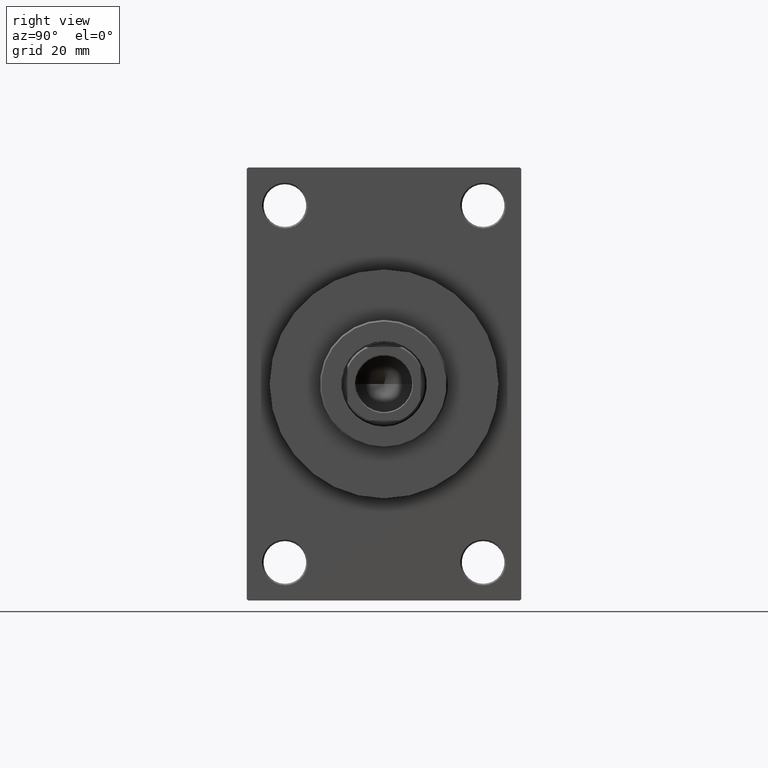
[diagram: clean part render]
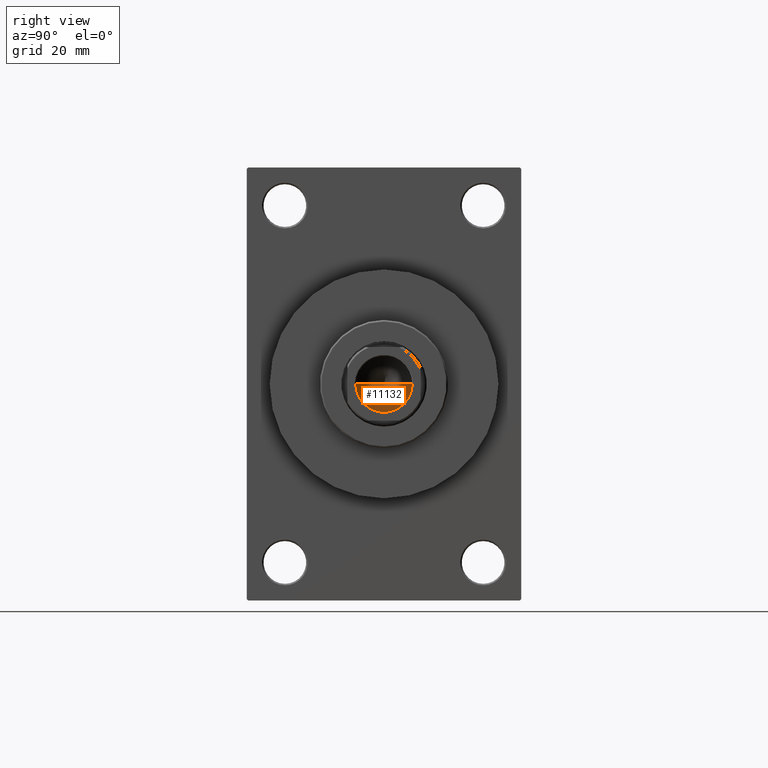
[diagram: same view with one face highlighted and labeled with its STEP entity id]
A machine part, right view. The second image highlights one B-rep face of the part: STEP entity #11132.
In plain terms, the highlighted conical surface has half-angle 59 deg.
Its self-contained STEP definition (entity closure, byte-faithful):
#5213 = CARTESIAN_POINT ( 'NONE',  ( 0.000000000000000000, 0.000000000000000000, 77.99999999999998579 ) ) ;
#8597 = DIRECTION ( 'NONE',  ( -0.8571673007021117785, 1.049727191138617956E-16, 0.5150380749100550437 ) ) ;
#8702 = DIRECTION ( 'NONE',  ( 1.000000000000000000, 0.000000000000000000, 0.000000000000000000 ) ) ;
#9395 = CONICAL_SURFACE ( 'NONE', #17020, 9.249999999999992895, 1.029744258676653423 ) ;
#9996 = DIRECTION ( 'NONE',  ( 0.8571673007021117785, 0.000000000000000000, 0.5150380749100550437 ) ) ;
#11132 = ADVANCED_FACE ( 'NONE', ( #38531 ), #9395, .F. ) ;
#11952 = ORIENTED_EDGE ( 'NONE', *, *, #12473, .F. ) ;
#12137 = CARTESIAN_POINT ( 'NONE',  ( 9.249999999999992895, 0.000000000000000000, 77.99999999999998579 ) ) ;
#12473 = EDGE_CURVE ( 'NONE', #35534, #35426, #34618, .T. ) ;
#15160 = EDGE_LOOP ( 'NONE', ( #11952, #41784, #34279 ) ) ;
#15311 = CIRCLE ( 'NONE', #35155, 9.249999999999992895 ) ;
#15515 = CARTESIAN_POINT ( 'NONE',  ( -9.249999999999992895, 1.132798289211300712E-15, 77.99999999999998579 ) ) ;
#17020 = AXIS2_PLACEMENT_3D ( 'NONE', #27319, #34261, #8702 ) ;
#17377 = CARTESIAN_POINT ( 'NONE',  ( 9.249999999999992895, 0.000000000000000000, 77.99999999999998579 ) ) ;
#19442 = CARTESIAN_POINT ( 'NONE',  ( -9.249999999999992895, 1.132798289211300712E-15, 77.99999999999998579 ) ) ;
#21073 = CARTESIAN_POINT ( 'NONE',  ( -9.769621978240258809E-15, 0.000000000000000000, 72.44203927399505005 ) ) ;
#22885 = DIRECTION ( 'NONE',  ( 1.000000000000000000, 0.000000000000000000, 0.000000000000000000 ) ) ;
#23041 = EDGE_CURVE ( 'NONE', #35534, #32619, #43638, .T. ) ;
#27319 = CARTESIAN_POINT ( 'NONE',  ( 0.000000000000000000, 0.000000000000000000, 77.99999999999998579 ) ) ;
#32619 = VERTEX_POINT ( 'NONE', #12137 ) ;
#33620 = DIRECTION ( 'NONE',  ( -0.000000000000000000, -0.000000000000000000, 1.000000000000000000 ) ) ;
#34261 = DIRECTION ( 'NONE',  ( -0.000000000000000000, -0.000000000000000000, 1.000000000000000000 ) ) ;
#34279 = ORIENTED_EDGE ( 'NONE', *, *, #37036, .T. ) ;
#34618 = LINE ( 'NONE', #15515, #37655 ) ;
#35155 = AXIS2_PLACEMENT_3D ( 'NONE', #5213, #33620, #22885 ) ;
#35426 = VERTEX_POINT ( 'NONE', #19442 ) ;
#35534 = VERTEX_POINT ( 'NONE', #21073 ) ;
#37036 = EDGE_CURVE ( 'NONE', #32619, #35426, #15311, .T. ) ;
#37125 = VECTOR ( 'NONE', #9996, 1000.000000000000000 ) ;
#37655 = VECTOR ( 'NONE', #8597, 1000.000000000000000 ) ;
#38531 = FACE_OUTER_BOUND ( 'NONE', #15160, .T. ) ;
#41784 = ORIENTED_EDGE ( 'NONE', *, *, #23041, .T. ) ;
#43638 = LINE ( 'NONE', #17377, #37125 ) ;